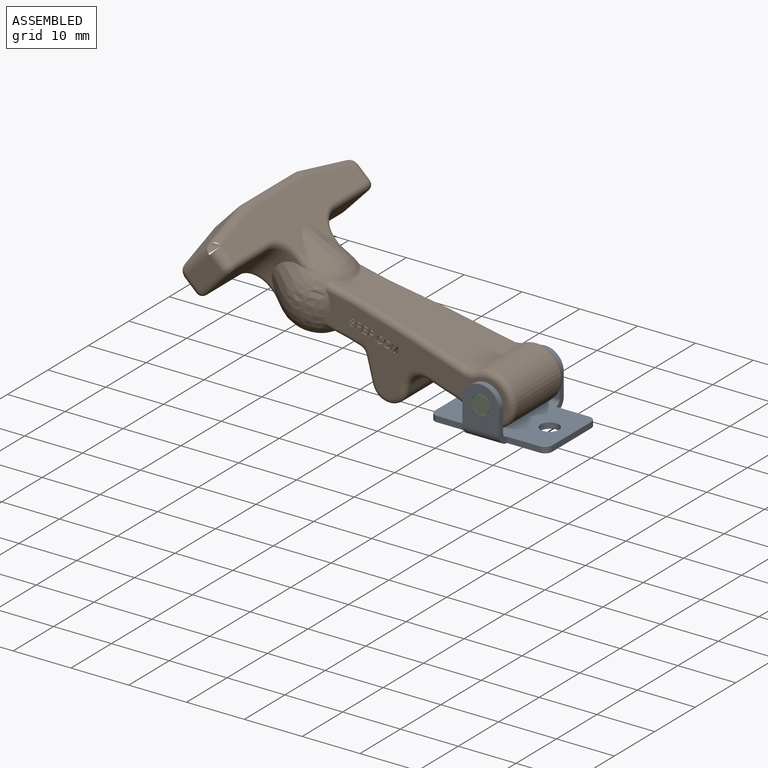
[diagram: assembled view]
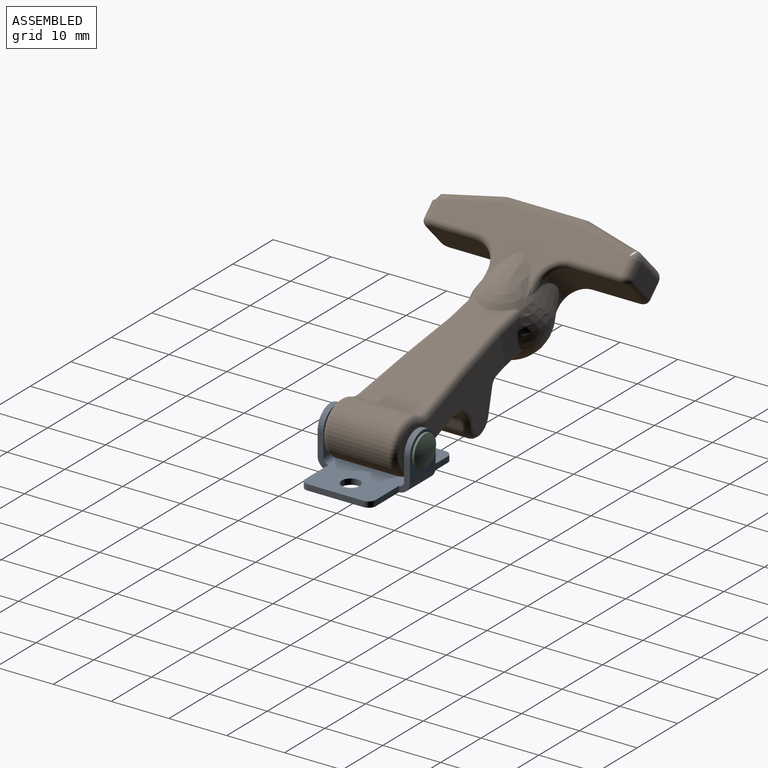
[diagram: assembled view, second angle]
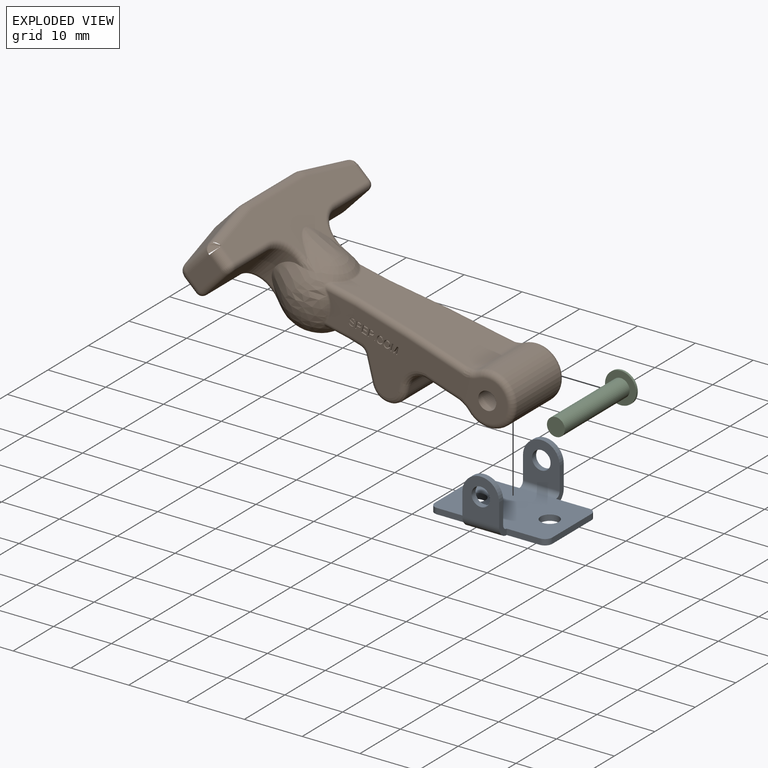
[diagram: exploded view]
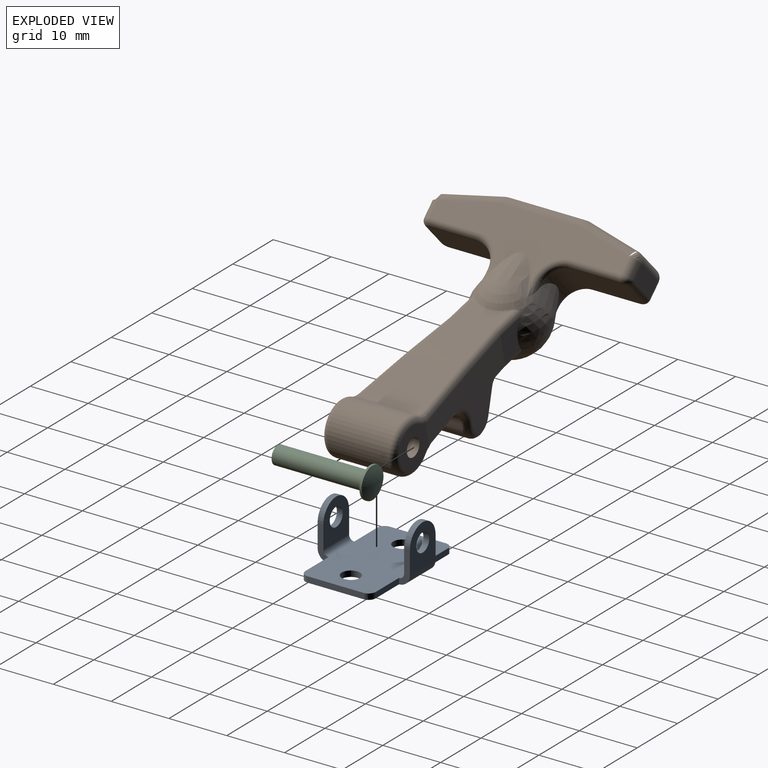
[diagram: exploded view, second angle]
ASSEMBLY  parts=3 mates=2
PART A: 34 faces, bbox 20.3x16x9 mm
  f0: plane 7.13x6.35mm, normal (0,-1,0), area 32.9mm2, adj f22,f24,f25,f26,f27
  f1: plane 7.13x6.35mm, normal (0,1,0), area 32.9mm2, adj f23,f24,f25,f26,f27
  f2: plane 5.72x1mm, normal (0,-1,0), area 5.7mm2, adj f3,f4,f20,f33
  f3: plane 20.32x12.19mm, normal (0,0,1), area 230.5mm2, adj f2,f5,f6,f7,f8,f9,f13,f23
  f4: plane 20.32x12.19mm, normal (0,0,-1), area 230.5mm2, adj f2,f5,f6,f7,f8,f9,f12,f22
  f5: plane 5.72x1mm, normal (0,1,0), area 5.7mm2, adj f3,f4,f10,f30
  f6: plane 5.72x1mm, normal (0,1,0), area 5.7mm2, adj f3,f4,f11,f32
  f7: plane 9.65x1mm, normal (-1,0,0), area 9.7mm2, adj f3,f4,f32,f33
  f8: plane 5.72x1mm, normal (0,-1,0), area 5.7mm2, adj f3,f4,f21,f31
  f9: plane 9.65x1mm, normal (1,0,0), area 9.7mm2, adj f3,f4,f30,f31
  f10: plane 1.89x1.89mm, normal (1,0,0), area 2.2mm2, adj f5,f12,f13,f15
  f11: plane 1.89x1.89mm, normal (-1,0,0), area 2.2mm2, adj f6,f12,f13,f14
  f12: cylinder r=1.89mm len=6.35mm, axis (-1,0,0), area 18.8mm2, adj f4,f10,f11,f16
  f13: cylinder r=0.89mm len=6.35mm, axis (-1,0,0), area 8.9mm2, adj f3,f10,f11,f17
  f14: plane 3.95x1mm, normal (-1,0,0), area 4mm2, adj f11,f16,f17,f18
  f15: plane 3.95x1mm, normal (1,0,0), area 4mm2, adj f10,f16,f17,f18
  f16: plane 7.13x6.35mm, normal (0,1,0), area 32.9mm2, adj f12,f14,f15,f18,f19
  f17: plane 7.13x6.35mm, normal (0,-1,0), area 32.9mm2, adj f13,f14,f15,f18,f19
  f18: cylinder r=3.17mm len=6.35mm, axis (0,1,0), area 10mm2, adj f14,f15,f16,f17
  f19: cylinder r=1.6mm len=3.2mm, axis (0,1,0), area 10.1mm2, adj f16,f17
  f20: plane 1.89x1.89mm, normal (-1,0,0), area 2.2mm2, adj f2,f22,f23,f25
  f21: plane 1.89x1.89mm, normal (1,0,0), area 2.2mm2, adj f8,f22,f23,f24
  f22: cylinder r=1.89mm len=6.35mm, axis (1,0,0), area 18.8mm2, adj f0,f4,f20,f21
  f23: cylinder r=0.89mm len=6.35mm, axis (1,0,0), area 8.9mm2, adj f1,f3,f20,f21
  f24: plane 3.95x1mm, normal (1,0,0), area 4mm2, adj f0,f1,f21,f26
  f25: plane 3.95x1mm, normal (-1,0,0), area 4mm2, adj f0,f1,f20,f26
  f26: cylinder r=3.17mm len=6.35mm, axis (0,-1,0), area 10mm2, adj f0,f1,f24,f25
  f27: cylinder r=1.6mm len=3.2mm, axis (0,-1,0), area 10.1mm2, adj f0,f1
  f28: cylinder r=1.59mm len=3.18mm, axis (0,0,1), area 10mm2, adj f3,f4
  f29: cylinder r=1.59mm len=3.18mm, axis (0,0,1), area 10mm2, adj f3,f4
  f30: cylinder r=1.27mm len=1.27mm, axis (0,0,-1), area 2mm2, adj f3,f4,f5,f9
  f31: cylinder r=1.27mm len=1.27mm, axis (0,0,-1), area 2mm2, adj f3,f4,f8,f9
  f32: cylinder r=1.27mm len=1.27mm, axis (0,0,-1), area 2mm2, adj f3,f4,f6,f7
  f33: cylinder r=1.27mm len=1.27mm, axis (0,0,-1), area 2mm2, adj f2,f3,f4,f7
PART B: 234 faces, bbox 51.6x36.1x25.6 mm
  f0: plane 22.39x12.46mm, normal (-0.08,-1,0.02), area 119.2mm2, adj f1,f21,f25,f79,f80,f81,f82,f83
  f1: plane 0.28x0.12mm, normal (0,-1,0), area 0mm2, adj f0,f138,f139,f140
  f2: plane 0.62x0.4mm, normal (0,-1,0), area 0.1mm2, adj f4,f61,f120,f121
  f3: plane 8.76x4.79mm, normal (0.73,0,-0.69), area 57.8mm2, adj f61,f114,f115,f116,f117,f118
  f4: cone r=6.11mm half-angle=15.6deg, axis (0.73,0,-0.69), area 30.6mm2, adj f2,f7,f26,f61,f111,f121
  f5: plane 0.61x0.42mm, normal (0,1,0), area 0.1mm2, adj f36,f60,f73,f74
  f6: plane 8.76x4.79mm, normal (0.73,0,-0.69), area 57.8mm2, adj f60,f67,f68,f69,f70,f71
  f7: sphere r=6.35mm, area 246.2mm2, adj f4,f35,f36,f37,f122,f123,f124,f125
  f8: cylinder r=1.27mm len=7.63mm, axis (0,-1,0), area 10.1mm2, adj f9,f17,f81,f109
  f9: plane 7.27x5.51mm, normal (-0.22,0,-0.98), area 34.3mm2, adj f8,f77,f79,f108,f110,f127
  f10: plane 13.99x8.54mm, normal (0.22,0,0.98), area 100.1mm2, adj f11,f78,f80,f94,f95,f124
  f11: cylinder r=6.35mm len=8.57mm, axis (0,-1,0), area 1.7mm2, adj f10,f12,f82,f96
  f12: plane 10.42x10.31mm, normal (0.25,0,0.97), area 101.1mm2, adj f11,f76,f84,f97
  f13: plane 10.44x5.57mm, normal (-0.25,0,-0.97), area 57.1mm2, adj f14,f75,f91,f103
  f14: cylinder r=3.17mm len=9.44mm, axis (0,-1,0), area 45.6mm2, adj f13,f15,f89,f104
  f15: plane 8.7x0.97mm, normal (0.97,0,-0.23), area 8.7mm2, adj f14,f16,f87,f105
  f16: cylinder r=3.17mm len=8.7mm, axis (0,-1,0), area 69.4mm2, adj f15,f17,f85,f106
  f17: plane 8x4.09mm, normal (-0.96,0,-0.28), area 33.3mm2, adj f8,f16,f83,f107
  f18: plane 0.56x0.54mm, normal (-0.08,-1,0.02), area 0.2mm2, adj f25,f135,f136,f143,f144
  f19: plane 22.37x12.43mm, normal (-0.08,1,0.02), area 124.5mm2, adj f20,f24,f95,f96,f97,f98,f99,f101
  f20: plane 7.4x6.97mm, normal (0,1,0), area 31.9mm2, adj f19,f23,f99,f100,f101
  f21: plane 7.4x6.97mm, normal (0,-1,0), area 31.9mm2, adj f0,f23,f88,f90,f92
  f22: cylinder r=4.5mm len=10.67mm, axis (0,-1,0), area 217mm2, adj f75,f76,f90,f100
  f23: cylinder r=1.55mm len=12.7mm, axis (0,-1,0), area 123.7mm2, adj f20,f21
  f24: plane 5.76x4.84mm, normal (0,1,0), area 18.6mm2, adj f19,f94,f108,f123
  f25: plane 5.76x4.84mm, normal (0,-1,0), area 18.4mm2, adj f0,f18,f77,f78,f128,f137,f141,f142
  f26: plane 0.61x0.42mm, normal (0,-1,0), area 0.1mm2, adj f4,f61,f111,f112
  f27: plane 33.02x7.21mm, normal (0.69,0,0.73), area 171.9mm2, adj f40,f41,f42,f43,f44,f50,f55,f63
  f28: plane 0.62x0.4mm, normal (0,1,0), area 0.1mm2, adj f36,f60,f64,f65
  f29: plane 33.02x7.21mm, normal (-0.69,0,-0.73), area 171.9mm2, adj f45,f46,f47,f48,f49,f54,f59,f62
  f30: plane 6.02x5.91mm, normal (0,-1,0), area 15.9mm2, adj f55,f57,f59,f116
  f31: plane 9.52x5.56mm, normal (-0.71,-0.22,0.67), area 54.6mm2, adj f39,f40,f45,f57
  f32: plane 13.25x4.05mm, normal (-0.73,0,0.69), area 74mm2, adj f38,f39,f43,f47
  f33: plane 9.52x5.56mm, normal (-0.71,0.22,0.67), area 54.6mm2, adj f38,f42,f48,f52
  f34: plane 6.02x5.91mm, normal (0,1,0), area 15.9mm2, adj f50,f52,f54,f69
  f35: cone r=6.11mm half-angle=15.6deg, axis (0.73,0,-0.69), area 37.4mm2, adj f7,f62,f74,f111
  f36: cone r=6.11mm half-angle=15.6deg, axis (0.73,0,-0.69), area 30.6mm2, adj f5,f7,f28,f60,f64,f74
  f37: cone r=6.11mm half-angle=15.6deg, axis (0.73,0,-0.69), area 37.4mm2, adj f7,f63,f64,f121
  f38: cylinder r=3.17mm len=4.11mm, axis (0.69,0,0.73), area 4mm2, adj f32,f33,f44,f49
  f39: cylinder r=3.17mm len=4.11mm, axis (0.69,0,0.73), area 4mm2, adj f31,f32,f41,f46
  f40: cylinder r=1.52mm len=9.86mm, axis (-0.16,0.97,0.15), area 23.4mm2, adj f27,f31,f41,f56
  f41: torus R=1.65mm, axis (-0.69,0,-0.73), area 1.4mm2, adj f27,f39,f40,f43
  f42: cylinder r=1.52mm len=9.86mm, axis (0.16,0.97,-0.15), area 23.4mm2, adj f27,f33,f44,f51
  f43: cylinder r=1.52mm len=13.25mm, axis (0,1,0), area 31.7mm2, adj f27,f32,f41,f44
  f44: torus R=1.65mm, axis (-0.69,0,-0.73), area 1.4mm2, adj f27,f38,f42,f43
  f45: cylinder r=1.52mm len=9.86mm, axis (-0.16,0.97,0.15), area 23.4mm2, adj f29,f31,f46,f58
  f46: torus R=1.65mm, axis (0.69,0,0.73), area 1.4mm2, adj f29,f39,f45,f47
  f47: cylinder r=1.52mm len=13.25mm, axis (0,1,0), area 31.7mm2, adj f29,f32,f46,f49
  f48: cylinder r=1.52mm len=9.86mm, axis (0.16,0.97,-0.15), area 23.4mm2, adj f29,f33,f49,f53
  f49: torus R=1.65mm, axis (0.69,0,0.73), area 1.4mm2, adj f29,f38,f47,f48
  f50: cylinder r=1.52mm len=3.12mm, axis (0.73,0,-0.69), area 6.8mm2, adj f27,f34,f51,f68
  f51: sphere r=1.52mm, area 3.3mm2, adj f42,f50,f52
  f52: cylinder r=1.52mm len=5.08mm, axis (0.69,0,0.73), area 11.5mm2, adj f33,f34,f51,f53
  f53: sphere r=1.52mm, area 2.4mm2, adj f48,f52,f54
  f54: cylinder r=1.52mm len=3.12mm, axis (0.73,0,-0.69), area 6.8mm2, adj f29,f34,f53,f70
  f55: cylinder r=1.52mm len=3.12mm, axis (-0.73,0,0.69), area 6.8mm2, adj f27,f30,f56,f117
  f56: sphere r=1.52mm, area 2.5mm2, adj f40,f55,f57
  f57: cylinder r=1.52mm len=5.08mm, axis (0.69,0,0.73), area 11.5mm2, adj f30,f31,f56,f58
  f58: sphere r=1.52mm, area 2.4mm2, adj f45,f57,f59
  f59: cylinder r=1.52mm len=3.12mm, axis (-0.73,0,0.69), area 6.8mm2, adj f29,f30,f58,f115
  f60: cylinder r=3.81mm len=7.41mm, axis (-0.69,0,-0.73), area 31.5mm2, adj f5,f6,f28,f36,f66,f72
  f61: cylinder r=3.81mm len=7.41mm, axis (-0.69,0,-0.73), area 31.5mm2, adj f2,f3,f4,f26,f113,f119
  f62: bspline ~9.68x5.25mm, area 3.5mm2, adj f29,f35,f74,f111
  f63: bspline ~9.68x5.4mm, area 3.5mm2, adj f27,f37,f64,f121
  f64: bspline ~3.39x3.04mm, area 2.2mm2, adj f28,f36,f37,f63,f65
  f65: cylinder r=1.02mm len=1.02mm, axis (-0.73,0,0.69), area 0mm2, adj f27,f28,f64,f66
  f66: torus R=4.83mm, axis (-0.69,0,-0.73), area 10.5mm2, adj f27,f60,f65,f67
  f67: cylinder r=1.02mm len=8.26mm, axis (0,-1,0), area 13.2mm2, adj f6,f27,f66,f68
  f68: torus R=0.51mm, axis (-0.73,0,0.69), area 2.9mm2, adj f6,f50,f67,f69
  f69: cylinder r=1.02mm len=4.75mm, axis (0.69,0,0.73), area 8.9mm2, adj f6,f34,f68,f70
  f70: torus R=0.51mm, axis (-0.73,0,0.69), area 2.9mm2, adj f6,f54,f69,f71
  f71: cylinder r=1.02mm len=8.26mm, axis (0,-1,0), area 13.2mm2, adj f6,f29,f70,f72
  f72: torus R=4.83mm, axis (0.69,0,0.73), area 10.5mm2, adj f29,f60,f71,f73
  f73: cylinder r=1.02mm len=1.02mm, axis (-0.73,0,0.69), area 0mm2, adj f5,f29,f72,f74
  f74: bspline ~3.03x2.78mm, area 2.2mm2, adj f5,f35,f36,f62,f73
  f75: cylinder r=3.17mm len=10.67mm, axis (0,-1,0), area 22.9mm2, adj f13,f22,f92,f93,f101,f102
  f76: cylinder r=3.17mm len=10.67mm, axis (0,-1,0), area 23.6mm2, adj f12,f22,f86,f88,f98,f99
  f77: cylinder r=1.02mm len=4.05mm, axis (0.98,0,-0.22), area 5.8mm2, adj f9,f25,f79,f129
  f78: cylinder r=1.02mm len=4.9mm, axis (0.98,0,-0.22), area 7.5mm2, adj f10,f25,f80,f126
  f79: cylinder r=1.02mm len=2.38mm, axis (-0.97,0.09,0.22), area 3.6mm2, adj f0,f9,f77,f81
  f80: cylinder r=1.02mm len=9.74mm, axis (0.97,-0.09,-0.22), area 15.4mm2, adj f0,f10,f78,f82
  f81: bspline ~1.89x1.85mm, area 2.7mm2, adj f0,f8,f79,f83
  f82: bspline ~2.29x1.43mm, area 0.3mm2, adj f0,f11,f80,f84
  f83: cylinder r=1.02mm len=4.4mm, axis (-0.28,0.04,0.96), area 6.5mm2, adj f0,f17,f81,f85
  f84: cylinder r=1.02mm len=10.65mm, axis (0.97,-0.09,-0.25), area 17.1mm2, adj f0,f12,f82,f86
  f85: bspline ~6.13x2.69mm, area 11.9mm2, adj f0,f16,f83,f87
  f86: bspline ~1.45x1.14mm, area 2mm2, adj f0,f76,f84,f88
  f87: cylinder r=1.02mm len=1.31mm, axis (-0.23,0,-0.97), area 1.7mm2, adj f0,f15,f85,f89
  f88: torus R=4.19mm, axis (0,1,0), area 2.1mm2, adj f0,f21,f76,f86,f90
  f89: bspline ~5.86x4.02mm, area 9.3mm2, adj f0,f14,f87,f91
  f90: torus R=3.48mm, axis (0,1,0), area 29.8mm2, adj f21,f22,f88,f92
  f91: cylinder r=1.02mm len=5.75mm, axis (-0.97,0.09,0.25), area 9.2mm2, adj f0,f13,f89,f93
  f92: torus R=4.19mm, axis (0,1,0), area 2.1mm2, adj f0,f21,f75,f90,f93
  f93: bspline ~1.45x1.43mm, area 1.9mm2, adj f0,f75,f91,f92
  f94: cylinder r=1.02mm len=4.9mm, axis (0.98,0,-0.22), area 7.5mm2, adj f10,f24,f95,f122
  f95: cylinder r=1.02mm len=9.74mm, axis (-0.97,-0.09,0.22), area 15.4mm2, adj f10,f19,f94,f96
  f96: bspline ~2.29x1.43mm, area 0.3mm2, adj f11,f19,f95,f97
  f97: cylinder r=1.02mm len=10.65mm, axis (-0.97,-0.09,0.25), area 17.1mm2, adj f12,f19,f96,f98
  f98: bspline ~1.45x1.14mm, area 2mm2, adj f19,f76,f97,f99
  f99: torus R=4.19mm, axis (0,1,0), area 2.1mm2, adj f19,f20,f76,f98,f100
  f100: torus R=3.48mm, axis (0,1,0), area 29.8mm2, adj f20,f22,f99,f101
  f101: torus R=4.19mm, axis (0,1,0), area 2.1mm2, adj f19,f20,f75,f100,f102
  f102: bspline ~1.45x1.43mm, area 1.9mm2, adj f19,f75,f101,f103
  f103: cylinder r=1.02mm len=5.75mm, axis (0.97,0.09,-0.25), area 9.2mm2, adj f13,f19,f102,f104
  f104: bspline ~5.11x3.47mm, area 9.3mm2, adj f14,f19,f103,f105
  f105: cylinder r=1.02mm len=1.31mm, axis (0.23,0,0.97), area 1.7mm2, adj f15,f19,f104,f106
  f106: bspline ~6.33x3.07mm, area 11.9mm2, adj f16,f19,f105,f107
  f107: cylinder r=1.02mm len=4.4mm, axis (0.28,0.04,-0.96), area 6.5mm2, adj f17,f19,f106,f109
  f108: cylinder r=1.02mm len=4.05mm, axis (0.98,0,-0.22), area 5.8mm2, adj f9,f24,f110,f125
  f109: bspline ~1.89x1.85mm, area 2.7mm2, adj f8,f19,f107,f110
  f110: cylinder r=1.02mm len=2.38mm, axis (0.97,0.09,-0.22), area 3.6mm2, adj f9,f19,f108,f109
  f111: bspline ~3.3x3.15mm, area 2.2mm2, adj f4,f26,f35,f62,f112
  f112: cylinder r=1.02mm len=1.02mm, axis (-0.73,0,0.69), area 0mm2, adj f26,f29,f111,f113
  f113: torus R=4.83mm, axis (0.69,0,0.73), area 10.5mm2, adj f29,f61,f112,f114
  f114: cylinder r=1.02mm len=8.26mm, axis (0,-1,0), area 13.2mm2, adj f3,f29,f113,f115
  f115: torus R=0.51mm, axis (-0.73,0,0.69), area 2.9mm2, adj f3,f59,f114,f116
  f116: cylinder r=1.02mm len=4.75mm, axis (0.69,0,0.73), area 8.9mm2, adj f3,f30,f115,f117
  f117: torus R=0.51mm, axis (-0.73,0,0.69), area 2.9mm2, adj f3,f55,f116,f118
  f118: cylinder r=1.02mm len=8.26mm, axis (0,-1,0), area 13.2mm2, adj f3,f27,f117,f119
  f119: torus R=4.83mm, axis (-0.69,0,-0.73), area 10.5mm2, adj f27,f61,f118,f120
  f120: cylinder r=1.02mm len=1.02mm, axis (-0.73,0,0.69), area 0mm2, adj f2,f27,f119,f121
  f121: bspline ~3.07x2.65mm, area 2.2mm2, adj f2,f4,f37,f63,f120
  f122: bspline ~1.88x1.84mm, area 0.7mm2, adj f7,f94,f123,f124
  f123: torus R=4.74mm, axis (0,-1,0), area 1.9mm2, adj f7,f24,f122,f125
  f124: torus R=5.03mm, axis (-0.22,0,-0.98), area 3mm2, adj f7,f10,f122,f126
  f125: bspline ~1.8x1.8mm, area 0.8mm2, adj f7,f108,f123,f127
  f126: bspline ~1.88x1.84mm, area 0.7mm2, adj f7,f78,f124,f128
  f127: torus R=6.05mm, axis (0.22,0,0.98), area 3.8mm2, adj f7,f9,f125,f129
  f128: torus R=4.74mm, axis (0,1,0), area 1.9mm2, adj f7,f25,f126,f129
  f129: bspline ~1.8x1.59mm, area 0.8mm2, adj f7,f77,f127,f128
  f130: extruded ~0.54x0.28mm, area 0.1mm2, adj f0,f131,f137,f146
  f131: extruded ~0.35x0.19mm, area 0.1mm2, adj f0,f130,f138,f146
  f132: extruded ~0.29x0.23mm, area 0.1mm2, adj f0,f133,f140,f146
  f133: plane 0.18x0.18mm, normal (0.23,0,0.97), area 0mm2, adj f0,f132,f134,f146
  f134: extruded ~0.48x0.38mm, area 0.1mm2, adj f0,f133,f141,f146
  f135: extruded ~0.2x0.17mm, area 0mm2, adj f18,f136,f143,f146
  f136: extruded ~0.34x0.17mm, area 0.1mm2, adj f18,f135,f144,f146
  f137: extruded ~0.57x0.43mm, area 0.1mm2, adj f0,f25,f130,f145,f146
  f138: extruded ~0.45x0.29mm, area 0.1mm2, adj f0,f1,f131,f139,f146
  f139: cylinder r=0.15mm len=0.13mm, axis (0,-1,0), area 0mm2, adj f1,f138,f140,f146
  f140: extruded ~0.31x0.14mm, area 0mm2, adj f0,f1,f132,f139,f146
  f141: extruded ~0.52x0.26mm, area 0.1mm2, adj f0,f25,f134,f142,f146
  f142: extruded ~0.31x0.13mm, area 0mm2, adj f25,f141,f143,f146
  f143: extruded ~0.4x0.24mm, area 0.1mm2, adj f18,f25,f135,f142,f146
  f144: extruded ~0.39x0.27mm, area 0.1mm2, adj f18,f25,f136,f145,f146
  f145: plane 0.18x0.13mm, normal (-0.23,0,-0.97), area 0mm2, adj f25,f137,f144,f146
  f146: plane 1.33x1.08mm, normal (0,-1,0), area 0.6mm2, adj f130,f131,f132,f133,f134,f135,f136,f137
  f147: plane 0.22x0.18mm, normal (0.23,0,0.97), area 0mm2, adj f0,f148,f154,f161
  f148: plane 0.51x0.22mm, normal (-0.97,0,0.23), area 0.1mm2, adj f0,f147,f149,f161
  f149: plane 0.31x0.25mm, normal (0.23,0,0.97), area 0.1mm2, adj f0,f148,f150,f161
  f150: extruded ~0.54x0.3mm, area 0.2mm2, adj f0,f149,f151,f161
  f151: extruded ~0.42x0.29mm, area 0.1mm2, adj f0,f150,f152,f161
  f152: cylinder r=1.09mm len=0.27mm, axis (0,1,0), area 0mm2, adj f0,f151,f153,f161
  f153: plane 0.46x0.25mm, normal (-0.23,0,-0.97), area 0.1mm2, adj f0,f152,f154,f161
  f154: plane 1.25x0.3mm, normal (0.97,0,-0.23), area 0.3mm2, adj f0,f147,f153,f161
  f155: plane 0.45x0.22mm, normal (-0.97,0,0.23), area 0.1mm2, adj f156,f160,f161,f162
  f156: plane 0.3x0.25mm, normal (-0.23,0,-0.97), area 0.1mm2, adj f155,f157,f161,f162
  f157: extruded ~0.33x0.28mm, area 0.1mm2, adj f156,f158,f161,f162
  f158: extruded ~0.28x0.24mm, area 0.1mm2, adj f157,f159,f161,f162
  f159: cylinder r=0.64mm len=0.26mm, axis (0,-1,0), area 0mm2, adj f158,f160,f161,f162
  f160: plane 0.3x0.25mm, normal (0.23,0,0.97), area 0.1mm2, adj f155,f159,f161,f162
  f161: plane 1.29x1.15mm, normal (0,-1,0), area 0.5mm2, adj f147,f148,f149,f150,f151,f152,f153,f154
  f162: plane 0.65x0.55mm, normal (-0.08,-1,0.02), area 0.3mm2, adj f155,f156,f157,f158,f159,f160
  f163: plane 0.91x0.39mm, normal (0.23,0,0.97), area 0.3mm2, adj f0,f164,f174,f175
  f164: plane 0.39x0.14mm, normal (-0.97,0,0.23), area 0.1mm2, adj f0,f163,f165,f175
  f165: plane 0.74x0.39mm, normal (-0.23,0,-0.97), area 0.3mm2, adj f0,f164,f166,f175
  f166: plane 0.43x0.33mm, normal (-0.97,0,0.23), area 0.1mm2, adj f0,f165,f167,f175
  f167: plane 0.66x0.39mm, normal (0.23,0,0.97), area 0.2mm2, adj f0,f166,f168,f175
  f168: plane 0.39x0.14mm, normal (-0.97,0,0.23), area 0.1mm2, adj f0,f167,f169,f175
  f169: plane 0.66x0.39mm, normal (-0.23,0,-0.97), area 0.2mm2, adj f0,f168,f170,f175
  f170: plane 0.38x0.33mm, normal (-0.97,0,0.23), area 0.1mm2, adj f0,f169,f171,f175
  f171: plane 0.7x0.39mm, normal (0.23,0,0.97), area 0.3mm2, adj f0,f170,f172,f175
  f172: plane 0.39x0.14mm, normal (-0.97,0,0.23), area 0.1mm2, adj f0,f171,f173,f175
  f173: plane 0.88x0.39mm, normal (-0.23,0,-0.97), area 0.3mm2, adj f0,f172,f174,f175
  f174: plane 1.25x0.31mm, normal (0.97,0,-0.23), area 0.4mm2, adj f0,f163,f173,f175
  f175: plane 1.47x1.18mm, normal (0,-1,0), area 0.6mm2, adj f163,f164,f165,f166,f167,f168,f169,f170
  f176: plane 0.43x0.18mm, normal (0.23,0,0.97), area 0.1mm2, adj f0,f177,f183,f190
  f177: plane 0.51x0.43mm, normal (-0.97,0,0.23), area 0.2mm2, adj f0,f176,f178,f190
  f178: plane 0.46x0.31mm, normal (0.23,0,0.97), area 0.1mm2, adj f0,f177,f179,f190
  f179: extruded ~0.54x0.5mm, area 0.3mm2, adj f0,f178,f180,f190
  f180: extruded ~0.5x0.42mm, area 0.2mm2, adj f0,f179,f181,f190
  f181: cylinder r=1.09mm len=0.47mm, axis (0,1,0), area 0.1mm2, adj f0,f180,f182,f190
  f182: plane 0.46x0.46mm, normal (-0.23,0,-0.97), area 0.2mm2, adj f0,f181,f183,f190
  f183: plane 1.25x0.42mm, normal (0.97,0,-0.23), area 0.5mm2, adj f0,f176,f182,f190
  f184: plane 0.45x0.43mm, normal (-0.97,0,0.23), area 0.2mm2, adj f185,f189,f190,f191
  f185: plane 0.46x0.3mm, normal (-0.23,0,-0.97), area 0.1mm2, adj f184,f186,f190,f191
  f186: extruded ~0.48x0.33mm, area 0.2mm2, adj f185,f187,f190,f191
  f187: extruded ~0.48x0.24mm, area 0.1mm2, adj f186,f188,f190,f191
  f188: cylinder r=0.64mm len=0.47mm, axis (0,-1,0), area 0.1mm2, adj f187,f189,f190,f191
  f189: plane 0.46x0.3mm, normal (0.23,0,0.97), area 0.1mm2, adj f184,f188,f190,f191
  f190: plane 1.29x1.15mm, normal (0,-1,0), area 0.5mm2, adj f176,f177,f178,f179,f180,f181,f182,f183
  f191: plane 0.65x0.55mm, normal (-0.08,-1,0.02), area 0.3mm2, adj f184,f185,f186,f187,f188,f189
  f192: plane 0.53x0.16mm, normal (0.23,0,0.97), area 0.1mm2, adj f0,f193,f195,f196
  f193: plane 0.53x0.16mm, normal (-0.97,0,0.23), area 0.1mm2, adj f0,f192,f194,f196
  f194: plane 0.53x0.16mm, normal (-0.23,0,-0.97), area 0.1mm2, adj f0,f193,f195,f196
  f195: plane 0.52x0.16mm, normal (0.97,0,-0.23), area 0.1mm2, adj f0,f192,f194,f196
  f196: plane 0.2x0.2mm, normal (0,-1,0), area 0mm2, adj f192,f193,f194,f195
  f197: extruded ~0.64x0.43mm, area 0.3mm2, adj f0,f198,f206,f207
  f198: extruded ~0.61x0.6mm, area 0.4mm2, adj f0,f197,f199,f207
  f199: extruded ~0.61x0.51mm, area 0.4mm2, adj f0,f198,f200,f207
  f200: extruded ~0.63x0.33mm, area 0.3mm2, adj f0,f199,f201,f207
  f201: plane 0.65x0.19mm, normal (0.02,0,1), area 0.1mm2, adj f0,f200,f202,f207
  f202: extruded ~0.65x0.48mm, area 0.4mm2, adj f0,f201,f203,f207
  f203: extruded ~0.73x0.61mm, area 0.6mm2, adj f0,f202,f204,f207
  f204: extruded ~0.79x0.61mm, area 0.6mm2, adj f0,f203,f205,f207
  f205: extruded ~0.65x0.61mm, area 0.5mm2, adj f0,f204,f206,f207
  f206: plane 0.65x0.17mm, normal (-0.45,0,-0.89), area 0.1mm2, adj f0,f197,f205,f207
  f207: plane 1.32x1.15mm, normal (0,-1,0), area 0.5mm2, adj f197,f198,f199,f200,f201,f202,f203,f204
  f208: extruded ~0.77x0.72mm, area 0.7mm2, adj f0,f209,f211,f216
  f209: extruded ~0.77x0.75mm, area 0.8mm2, adj f0,f208,f210,f216
  f210: extruded ~0.79x0.77mm, area 0.8mm2, adj f0,f209,f211,f216
  f211: extruded ~0.75x0.72mm, area 0.7mm2, adj f0,f208,f210,f216
  f212: extruded ~0.72x0.54mm, area 0.5mm2, adj f213,f215,f216,f217
  f213: extruded ~0.72x0.58mm, area 0.5mm2, adj f212,f214,f216,f217
  f214: extruded ~0.76x0.54mm, area 0.6mm2, adj f213,f215,f216,f217
  f215: extruded ~0.76x0.6mm, area 0.6mm2, adj f212,f214,f216,f217
  f216: plane 1.32x1.23mm, normal (0,-1,0), area 0.6mm2, adj f208,f209,f210,f211,f212,f213,f214,f215
  f217: plane 1.04x0.9mm, normal (-0.08,-1,0.02), area 0.7mm2, adj f212,f213,f214,f215
  f218: plane 0.8x0.18mm, normal (0.23,0,0.97), area 0.1mm2, adj f0,f219,f232,f233
  f219: plane 1.06x0.81mm, normal (-0.97,0,0.23), area 0.9mm2, adj f0,f218,f220,f233
  f220: plane 1.14x0.84mm, normal (1,0,0.07), area 0.9mm2, adj f0,f219,f221,f233
  f221: plane 0.85x0.18mm, normal (0.23,0,0.97), area 0.2mm2, adj f0,f220,f222,f233
  f222: plane 0.98x0.88mm, normal (-0.86,0,0.52), area 1mm2, adj f0,f221,f223,f233
  f223: plane 1.06x0.88mm, normal (0.97,0,-0.23), area 1mm2, adj f0,f222,f224,f233
  f224: plane 0.9x0.18mm, normal (0.23,0,0.97), area 0.2mm2, adj f0,f223,f225,f233
  f225: plane 1.25x0.9mm, normal (-0.97,0,0.23), area 1.2mm2, adj f0,f224,f226,f233
  f226: plane 0.9x0.26mm, normal (-0.23,0,-0.97), area 0.2mm2, adj f0,f225,f227,f233
  f227: plane 0.88x0.8mm, normal (0.85,0,-0.52), area 0.8mm2, adj f0,f226,f228,f233
  f228: plane 0.85x0.18mm, normal (0.86,0,-0.51), area 0.2mm2, adj f0,f227,f229,f233
  f229: plane 0.84x0.2mm, normal (-1,0,-0.06), area 0.2mm2, adj f0,f228,f230,f233
  f230: plane 0.94x0.84mm, normal (-1,0,-0.07), area 0.8mm2, adj f0,f229,f231,f233
  f231: plane 0.81x0.27mm, normal (-0.23,0,-0.97), area 0.2mm2, adj f0,f230,f232,f233
  f232: plane 1.25x0.79mm, normal (0.97,0,-0.23), area 1mm2, adj f0,f218,f231,f233
  f233: plane 1.54x1.5mm, normal (0,-1,0), area 0.8mm2, adj f218,f219,f220,f221,f222,f223,f224,f225
PART C: 5 faces, bbox 5.4x16.9x5.4 mm
  f0: cylinder r=1.55mm len=16mm, axis (0,-1,0), area 155.8mm2, adj f1,f2
  f1: plane 3.1x3.1mm, normal (0,-1,0), area 7.5mm2, adj f0
  f2: plane 5.41x5.41mm, normal (0,-1,0), area 15.4mm2, adj f0,f4
  f3: revolved ~5.39x5.39mm, area 23.8mm2, adj f4
  f4: cylinder r=2.71mm len=5.41mm, axis (0,-1,0), area 6.5mm2, adj f2,f3
PLACE A t=(-6.82,-3.86,-4.38)mm fixed
PLACE B rot(axis=(0,-1,0),0.1deg) t=(-6.82,-3.89,-4.38)mm
PLACE C t=(-6.82,-3.82,-4.38)mm
MATE revolute B.f90 <-> A.f26  axis (0,-1,0) through (-6.82,-10.24,1.46)mm
MATE fastened C.f0 <-> A.f26  axis (0,-1,0) through (-6.82,-11.84,1.46)mm
